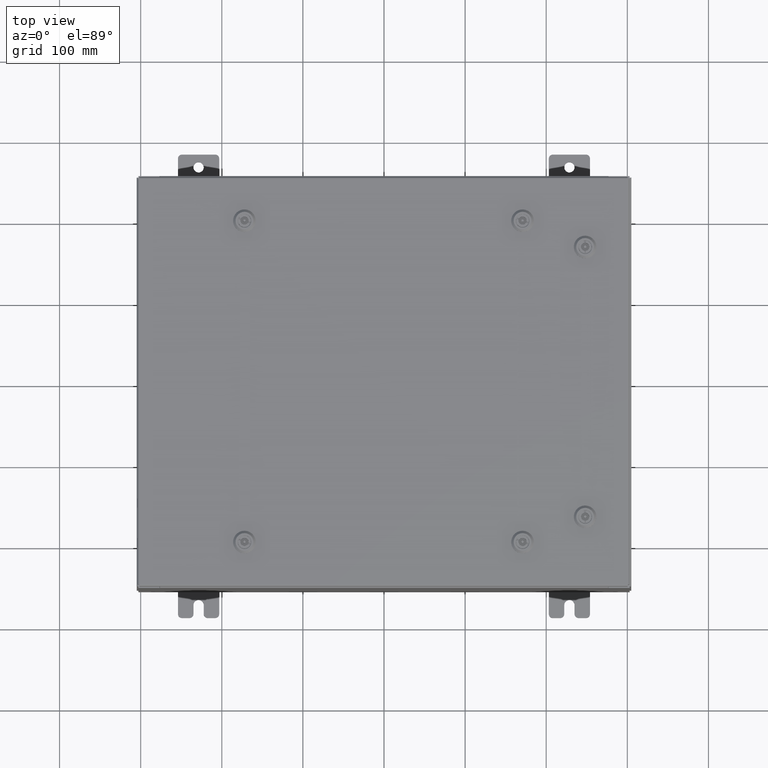
[diagram: clean part render]
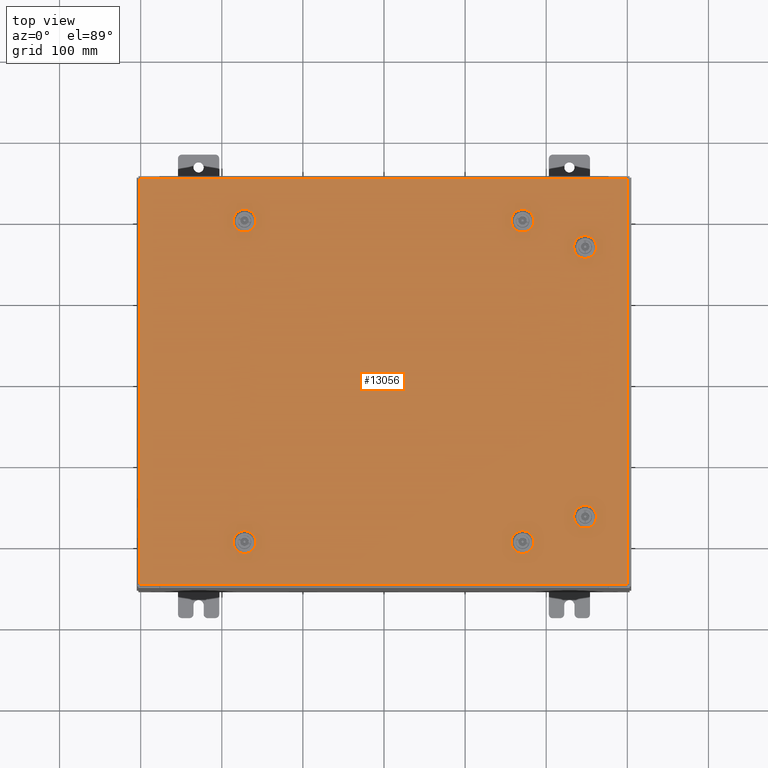
[diagram: same view with one face highlighted and labeled with its STEP entity id]
A machine part, top view. The second image highlights one B-rep face of the part: STEP entity #13056.
In plain terms, the highlighted planar face has unit normal (0, 0, -1).
Its self-contained STEP definition (entity closure, byte-faithful):
#666 = CARTESIAN_POINT ( 'NONE',  ( -6.949452375267869200, 7.392799999999994000, 0.0000000000000000000 ) ) ;
#678 = LINE ( 'NONE', #17160, #12120 ) ;
#840 = EDGE_CURVE ( 'NONE', #3509, #8757, #39560, .T. ) ;
#1135 = VERTEX_POINT ( 'NONE', #56614 ) ;
#1375 = CARTESIAN_POINT ( 'NONE',  ( -6.550547624732093500, 8.182799999999984300, 0.0000000000000000000 ) ) ;
#1407 = VECTOR ( 'NONE', #20702, 39.37007874015748100 ) ;
#1837 = VECTOR ( 'NONE', #5059, 39.37007874015748100 ) ;
#2102 = LINE ( 'NONE', #61636, #36542 ) ;
#2563 = CARTESIAN_POINT ( 'NONE',  ( -6.749999999999984900, 7.787799999999991800, 0.0000000000000000000 ) ) ;
#2796 = ORIENTED_EDGE ( 'NONE', *, *, #9666, .F. ) ;
#3298 = CARTESIAN_POINT ( 'NONE',  ( -6.550547624732093500, -8.182799999999986100, -2.548900087721007400E-013 ) ) ;
#3509 = VERTEX_POINT ( 'NONE', #666 ) ;
#3752 = DIRECTION ( 'NONE',  ( 0.0000000000000000000, 0.0000000000000000000, -1.000000000000000000 ) ) ;
#3800 = CARTESIAN_POINT ( 'NONE',  ( -6.749999999999984900, 7.787799999999991800, 0.0000000000000000000 ) ) ;
#4153 = AXIS2_PLACEMENT_3D ( 'NONE', #13929, #48234, #18863 ) ;
#4444 = VECTOR ( 'NONE', #63231, 39.37007874015748100 ) ;
#4455 = EDGE_CURVE ( 'NONE', #54157, #55228, #47881, .T. ) ;
#4512 = CARTESIAN_POINT ( 'NONE',  ( 6.550547624732091700, -8.182799999999984300, -2.091477791901900700E-013 ) ) ;
#4857 = FACE_BOUND ( 'NONE', #21498, .T. ) ;
#5059 = DIRECTION ( 'NONE',  ( 5.478697338139235000E-015, 1.000000000000000000, 6.982962677686325100E-015 ) ) ;
#5490 = CIRCLE ( 'NONE', #45632, 0.4424999999999972800 ) ;
#6006 = CARTESIAN_POINT ( 'NONE',  ( 6.949452375267864700, 8.182799999999989600, 0.0000000000000000000 ) ) ;
#6050 = DIRECTION ( 'NONE',  ( 6.982962677686266700E-015, -0.0000000000000000000, 1.000000000000000000 ) ) ;
#6152 = DIRECTION ( 'NONE',  ( -6.982962677686266700E-015, -6.982962677686266700E-015, 1.000000000000000000 ) ) ;
#6164 = LINE ( 'NONE', #50477, #32205 ) ;
#6385 = FACE_BOUND ( 'NONE', #30096, .T. ) ;
#6958 = AXIS2_PLACEMENT_3D ( 'NONE', #35378, #6050, #40332 ) ;
#7412 = CARTESIAN_POINT ( 'NONE',  ( 9.787800000000007800, 6.562500000000012400, 0.0000000000000000000 ) ) ;
#7467 = DIRECTION ( 'NONE',  ( 1.000000000000000000, 0.0000000000000000000, 0.0000000000000000000 ) ) ;
#7589 = VERTEX_POINT ( 'NONE', #57149 ) ;
#7818 = CARTESIAN_POINT ( 'NONE',  ( 10.18280000000000200, 6.761952375267898500, 0.0000000000000000000 ) ) ;
#8051 = EDGE_LOOP ( 'NONE', ( #12203, #14622, #37415, #2796 ) ) ;
#8346 = CIRCLE ( 'NONE', #60688, 0.4424999999999983400 ) ;
#8719 = CARTESIAN_POINT ( 'NONE',  ( 9.392800000000015400, -6.761952375267902900, -2.443558770110843000E-013 ) ) ;
#8720 = DIRECTION ( 'NONE',  ( 1.000000000000000000, 0.0000000000000000000, 0.0000000000000000000 ) ) ;
#8757 = VERTEX_POINT ( 'NONE', #33210 ) ;
#8778 = CIRCLE ( 'NONE', #15373, 0.4424999999999983400 ) ;
#8992 = CIRCLE ( 'NONE', #6958, 0.4424999999999983400 ) ;
#9336 = EDGE_CURVE ( 'NONE', #12774, #3509, #17690, .T. ) ;
#9356 = CARTESIAN_POINT ( 'NONE',  ( -6.749999999999984900, -7.787799999999993600, -2.521317385144147400E-013 ) ) ;
#9546 = VERTEX_POINT ( 'NONE', #63606 ) ;
#9666 = EDGE_CURVE ( 'NONE', #12380, #61228, #21484, .T. ) ;
#9783 = ORIENTED_EDGE ( 'NONE', *, *, #19269, .T. ) ;
#10701 = VERTEX_POINT ( 'NONE', #63540 ) ;
#10706 = EDGE_LOOP ( 'NONE', ( #9783, #24148, #58752, #50929 ) ) ;
#11382 = EDGE_CURVE ( 'NONE', #40223, #12774, #52070, .T. ) ;
#11543 = VECTOR ( 'NONE', #22962, 39.37007874015748100 ) ;
#11923 = CIRCLE ( 'NONE', #4153, 0.4424999999999972800 ) ;
#11925 = VECTOR ( 'NONE', #17502, 39.37007874015748100 ) ;
#12120 = VECTOR ( 'NONE', #51702, 39.37007874015748100 ) ;
#12145 = VERTEX_POINT ( 'NONE', #40261 ) ;
#12203 = ORIENTED_EDGE ( 'NONE', *, *, #49900, .F. ) ;
#12301 = DIRECTION ( 'NONE',  ( 1.000000000000000000, 0.0000000000000000000, 0.0000000000000000000 ) ) ;
#12380 = VERTEX_POINT ( 'NONE', #8719 ) ;
#12400 = LINE ( 'NONE', #55654, #36956 ) ;
#12499 = DIRECTION ( 'NONE',  ( -5.478697338139235000E-015, 1.000000000000000000, -0.0000000000000000000 ) ) ;
#12774 = VERTEX_POINT ( 'NONE', #26462 ) ;
#12821 = LINE ( 'NONE', #50125, #1407 ) ;
#12923 = EDGE_CURVE ( 'NONE', #43811, #57694, #24002, .T. ) ;
#13056 = ADVANCED_FACE ( 'NONE', ( #58526, #32424, #30919, #6385, #17877, #4857, #55433 ), #33058, .F. ) ;
#13423 = VERTEX_POINT ( 'NONE', #40349 ) ;
#13596 = DIRECTION ( 'NONE',  ( -0.0000000000000000000, -6.982962677686266700E-015, 1.000000000000000000 ) ) ;
#13929 = CARTESIAN_POINT ( 'NONE',  ( 6.749999999999983100, 7.787799999999992700, -4.713499807438223100E-014 ) ) ;
#14261 = DIRECTION ( 'NONE',  ( 0.0000000000000000000, 1.000000000000000000, 6.982962677686287200E-015 ) ) ;
#14488 = VECTOR ( 'NONE', #37598, 39.37007874015748100 ) ;
#14521 = AXIS2_PLACEMENT_3D ( 'NONE', #50031, #20613, #54920 ) ;
#14622 = ORIENTED_EDGE ( 'NONE', *, *, #53151, .F. ) ;
#15314 = DIRECTION ( 'NONE',  ( -0.0000000000000000000, -6.982962677686266700E-015, 1.000000000000000000 ) ) ;
#15373 = AXIS2_PLACEMENT_3D ( 'NONE', #18345, #52621, #23235 ) ;
#16160 = VERTEX_POINT ( 'NONE', #43749 ) ;
#16381 = VERTEX_POINT ( 'NONE', #41567 ) ;
#16442 = ORIENTED_EDGE ( 'NONE', *, *, #27292, .F. ) ;
#16478 = CIRCLE ( 'NONE', #56028, 0.4424999999999972800 ) ;
#16719 = CARTESIAN_POINT ( 'NONE',  ( -6.550547624732093500, 8.182799999999984300, 0.0000000000000000000 ) ) ;
#16722 = EDGE_CURVE ( 'NONE', #8757, #50389, #5490, .T. ) ;
#17160 = CARTESIAN_POINT ( 'NONE',  ( 6.550547624732099700, -7.392799999999996700, -2.036312386748179800E-013 ) ) ;
#17228 = ORIENTED_EDGE ( 'NONE', *, *, #9336, .F. ) ;
#17337 = CARTESIAN_POINT ( 'NONE',  ( 10.18280000000000200, 6.761952375267898500, 0.0000000000000000000 ) ) ;
#17398 = ORIENTED_EDGE ( 'NONE', *, *, #58100, .F. ) ;
#17502 = DIRECTION ( 'NONE',  ( -8.218046007208762600E-015, -1.000000000000000000, 0.0000000000000000000 ) ) ;
#17559 = EDGE_CURVE ( 'NONE', #47917, #40402, #24584, .T. ) ;
#17677 = CARTESIAN_POINT ( 'NONE',  ( 7.192499999999982100, -7.787799999999992700, -2.019067794551563600E-013 ) ) ;
#17690 = CIRCLE ( 'NONE', #36413, 0.4424999999999983400 ) ;
#17877 = FACE_BOUND ( 'NONE', #61613, .T. ) ;
#18245 = CARTESIAN_POINT ( 'NONE',  ( -6.949452375267865600, -8.182799999999991400, 0.0000000000000000000 ) ) ;
#18345 = CARTESIAN_POINT ( 'NONE',  ( 6.749999999999983100, -7.787799999999992700, -2.049967404400325100E-013 ) ) ;
#18466 = CIRCLE ( 'NONE', #46212, 0.4424999999999972800 ) ;
#18863 = DIRECTION ( 'NONE',  ( -1.000000000000000000, 0.0000000000000000000, 6.982962677686269100E-015 ) ) ;
#18975 = LINE ( 'NONE', #4512, #4444 ) ;
#19269 = EDGE_CURVE ( 'NONE', #7589, #19517, #27522, .T. ) ;
#19517 = VERTEX_POINT ( 'NONE', #23660 ) ;
#20613 = DIRECTION ( 'NONE',  ( -0.0000000000000000000, -6.982962677686266700E-015, 1.000000000000000000 ) ) ;
#20702 = DIRECTION ( 'NONE',  ( -1.000000000000000000, 2.739348669069610000E-015, 7.785697190086040200E-029 ) ) ;
#20820 = ORIENTED_EDGE ( 'NONE', *, *, #16722, .F. ) ;
#20840 = CARTESIAN_POINT ( 'NONE',  ( 10.18280000000000600, -6.761952375267898500, -2.443558770110843000E-013 ) ) ;
#21484 = CIRCLE ( 'NONE', #29383, 0.4424999999999972800 ) ;
#21498 = EDGE_LOOP ( 'NONE', ( #38848, #17228, #50249, #23655, #20820 ) ) ;
#21588 = EDGE_CURVE ( 'NONE', #13423, #47917, #22779, .T. ) ;
#21639 = DIRECTION ( 'NONE',  ( 0.0000000000000000000, 0.0000000000000000000, 1.000000000000000000 ) ) ;
#21865 = LINE ( 'NONE', #41951, #11925 ) ;
#22779 = CIRCLE ( 'NONE', #14521, 0.4424999999999983400 ) ;
#22962 = DIRECTION ( 'NONE',  ( 1.000000000000000000, 1.369674334534793800E-014, 7.785697190085976300E-029 ) ) ;
#23235 = DIRECTION ( 'NONE',  ( 1.000000000000000000, 0.0000000000000000000, 6.982962677686270700E-015 ) ) ;
#23431 = VECTOR ( 'NONE', #24995, 39.37007874015748100 ) ;
#23594 = CARTESIAN_POINT ( 'NONE',  ( -6.749999999999984900, 7.787799999999991800, 0.0000000000000000000 ) ) ;
#23655 = ORIENTED_EDGE ( 'NONE', *, *, #38532, .F. ) ;
#23660 = CARTESIAN_POINT ( 'NONE',  ( 11.84980000000000000, -9.849800000000000100, -2.048885995248197400E-016 ) ) ;
#23685 = DIRECTION ( 'NONE',  ( -6.982962677686266700E-015, -6.982962677686266700E-015, 1.000000000000000000 ) ) ;
#24002 = LINE ( 'NONE', #7818, #48552 ) ;
#24022 = CARTESIAN_POINT ( 'NONE',  ( 11.84980000000000200, 9.849800000000000100, -2.048885995248197400E-016 ) ) ;
#24110 = EDGE_LOOP ( 'NONE', ( #40314, #51485, #39656, #17398, #31504 ) ) ;
#24148 = ORIENTED_EDGE ( 'NONE', *, *, #27789, .T. ) ;
#24421 = CARTESIAN_POINT ( 'NONE',  ( -6.749999999999984900, -7.787799999999993600, -2.521317385144147400E-013 ) ) ;
#24463 = ORIENTED_EDGE ( 'NONE', *, *, #17559, .F. ) ;
#24584 = LINE ( 'NONE', #3298, #11543 ) ;
#24940 = ORIENTED_EDGE ( 'NONE', *, *, #31306, .F. ) ;
#24995 = DIRECTION ( 'NONE',  ( 1.000000000000000000, -2.739348669069625000E-015, -6.982962677686286400E-015 ) ) ;
#25120 = DIRECTION ( 'NONE',  ( 6.982962677686266700E-015, -0.0000000000000000000, 1.000000000000000000 ) ) ;
#25434 = CARTESIAN_POINT ( 'NONE',  ( 9.392800000000015400, 6.761952375267902900, 0.0000000000000000000 ) ) ;
#25988 = VECTOR ( 'NONE', #60055, 39.37007874015748100 ) ;
#26223 = CARTESIAN_POINT ( 'NONE',  ( -6.307499999999987700, -7.787799999999993600, -2.521317385144147400E-013 ) ) ;
#26462 = CARTESIAN_POINT ( 'NONE',  ( -6.949452375267865600, 8.182799999999989600, 0.0000000000000000000 ) ) ;
#26517 = VECTOR ( 'NONE', #62328, 39.37007874015748100 ) ;
#26521 = LINE ( 'NONE', #59310, #23431 ) ;
#26647 = ORIENTED_EDGE ( 'NONE', *, *, #31925, .F. ) ;
#27292 = EDGE_CURVE ( 'NONE', #16381, #43811, #35848, .T. ) ;
#27313 = DIRECTION ( 'NONE',  ( 1.095739467627835000E-014, -1.000000000000000000, -6.982962677686248600E-015 ) ) ;
#27522 = LINE ( 'NONE', #57110, #14488 ) ;
#27670 = AXIS2_PLACEMENT_3D ( 'NONE', #9356, #43658, #14261 ) ;
#27789 = EDGE_CURVE ( 'NONE', #19517, #41201, #49629, .T. ) ;
#27902 = VERTEX_POINT ( 'NONE', #35089 ) ;
#28205 = CARTESIAN_POINT ( 'NONE',  ( 6.550547624732099700, -7.392799999999996700, -2.036312386748179800E-013 ) ) ;
#28218 = VERTEX_POINT ( 'NONE', #26223 ) ;
#28341 = AXIS2_PLACEMENT_3D ( 'NONE', #23594, #57895, #28513 ) ;
#28513 = DIRECTION ( 'NONE',  ( 1.000000000000000000, 0.0000000000000000000, 0.0000000000000000000 ) ) ;
#28639 = EDGE_CURVE ( 'NONE', #12145, #13423, #12821, .T. ) ;
#28779 = CIRCLE ( 'NONE', #27670, 0.4424999999999972800 ) ;
#29356 = DIRECTION ( 'NONE',  ( 0.0000000000000000000, 1.000000000000000000, 6.982962677686287200E-015 ) ) ;
#29383 = AXIS2_PLACEMENT_3D ( 'NONE', #44716, #15314, #49649 ) ;
#29892 = CARTESIAN_POINT ( 'NONE',  ( 10.18280000000000600, -6.761952375267898500, -2.443558770110843000E-013 ) ) ;
#29955 = AXIS2_PLACEMENT_3D ( 'NONE', #51060, #21639, #55941 ) ;
#30096 = EDGE_LOOP ( 'NONE', ( #24463, #38933, #48128, #24940, #26647 ) ) ;
#30919 = FACE_BOUND ( 'NONE', #24110, .T. ) ;
#31079 = EDGE_CURVE ( 'NONE', #62460, #16381, #21865, .T. ) ;
#31306 = EDGE_CURVE ( 'NONE', #28218, #12145, #28779, .T. ) ;
#31504 = ORIENTED_EDGE ( 'NONE', *, *, #4455, .F. ) ;
#31787 = VERTEX_POINT ( 'NONE', #17677 ) ;
#31925 = EDGE_CURVE ( 'NONE', #40402, #28218, #16478, .T. ) ;
#32205 = VECTOR ( 'NONE', #55342, 39.37007874015748100 ) ;
#32326 = CARTESIAN_POINT ( 'NONE',  ( 6.949452375267867400, 7.392799999999995800, -4.852776656685374400E-014 ) ) ;
#32424 = FACE_BOUND ( 'NONE', #35257, .T. ) ;
#33058 = PLANE ( 'NONE',  #34796 ) ;
#33210 = CARTESIAN_POINT ( 'NONE',  ( -6.550547624732099700, 7.392799999999995800, 0.0000000000000000000 ) ) ;
#33447 = ORIENTED_EDGE ( 'NONE', *, *, #59016, .F. ) ;
#34796 = AXIS2_PLACEMENT_3D ( 'NONE', #62463, #3752, #38005 ) ;
#35089 = CARTESIAN_POINT ( 'NONE',  ( 6.949452375267867400, -7.392799999999995800, 0.0000000000000000000 ) ) ;
#35257 = EDGE_LOOP ( 'NONE', ( #59557, #16442, #61927, #42029 ) ) ;
#35277 = CIRCLE ( 'NONE', #52017, 0.4424999999999983400 ) ;
#35378 = CARTESIAN_POINT ( 'NONE',  ( 6.749999999999983100, 7.787799999999992700, -4.713499807438223100E-014 ) ) ;
#35489 = CARTESIAN_POINT ( 'NONE',  ( 6.749999999999983100, -7.787799999999992700, -2.049967404400325100E-013 ) ) ;
#35848 = CIRCLE ( 'NONE', #29955, 0.4424999999999972800 ) ;
#36193 = CARTESIAN_POINT ( 'NONE',  ( -6.550547624732099700, 7.392799999999995800, 0.0000000000000000000 ) ) ;
#36413 = AXIS2_PLACEMENT_3D ( 'NONE', #2563, #36799, #7467 ) ;
#36542 = VECTOR ( 'NONE', #27313, 39.37007874015748100 ) ;
#36799 = DIRECTION ( 'NONE',  ( 0.0000000000000000000, 0.0000000000000000000, 1.000000000000000000 ) ) ;
#36839 = VERTEX_POINT ( 'NONE', #62130 ) ;
#36956 = VECTOR ( 'NONE', #60625, 39.37007874015748100 ) ;
#37415 = ORIENTED_EDGE ( 'NONE', *, *, #63030, .F. ) ;
#37598 = DIRECTION ( 'NONE',  ( 1.000000000000000000, -0.0000000000000000000, -0.0000000000000000000 ) ) ;
#37988 = CARTESIAN_POINT ( 'NONE',  ( 6.949452375267864700, -8.182799999999989600, -2.063622422052470700E-013 ) ) ;
#38005 = DIRECTION ( 'NONE',  ( -1.000000000000000000, 0.0000000000000000000, -0.0000000000000000000 ) ) ;
#38056 = DIRECTION ( 'NONE',  ( 0.0000000000000000000, 0.0000000000000000000, 1.000000000000000000 ) ) ;
#38108 = VECTOR ( 'NONE', #39607, 39.37007874015748100 ) ;
#38398 = AXIS2_PLACEMENT_3D ( 'NONE', #42995, #13596, #47911 ) ;
#38532 = EDGE_CURVE ( 'NONE', #50389, #40223, #56696, .T. ) ;
#38642 = ORIENTED_EDGE ( 'NONE', *, *, #40973, .F. ) ;
#38848 = ORIENTED_EDGE ( 'NONE', *, *, #840, .F. ) ;
#38933 = ORIENTED_EDGE ( 'NONE', *, *, #21588, .F. ) ;
#39484 = ORIENTED_EDGE ( 'NONE', *, *, #50846, .F. ) ;
#39560 = LINE ( 'NONE', #36193, #26517 ) ;
#39607 = DIRECTION ( 'NONE',  ( 0.0000000000000000000, 1.000000000000000000, 0.0000000000000000000 ) ) ;
#39656 = ORIENTED_EDGE ( 'NONE', *, *, #55265, .F. ) ;
#39680 = ORIENTED_EDGE ( 'NONE', *, *, #47536, .F. ) ;
#39927 = CARTESIAN_POINT ( 'NONE',  ( 9.392800000000011800, -6.363047624732129900, 0.0000000000000000000 ) ) ;
#40223 = VERTEX_POINT ( 'NONE', #16719 ) ;
#40261 = CARTESIAN_POINT ( 'NONE',  ( -6.550547624732099700, -7.392799999999997600, -2.493734682567286900E-013 ) ) ;
#40314 = ORIENTED_EDGE ( 'NONE', *, *, #47854, .F. ) ;
#40332 = DIRECTION ( 'NONE',  ( -1.000000000000000000, 0.0000000000000000000, 6.982962677686252500E-015 ) ) ;
#40349 = CARTESIAN_POINT ( 'NONE',  ( -6.949452375267869200, -7.392799999999996700, -2.493734682567286900E-013 ) ) ;
#40402 = VERTEX_POINT ( 'NONE', #42224 ) ;
#40438 = DIRECTION ( 'NONE',  ( 1.000000000000000000, 0.0000000000000000000, 6.982962677686270700E-015 ) ) ;
#40458 = CARTESIAN_POINT ( 'NONE',  ( 10.18280000000000600, 6.363047624732129900, 0.0000000000000000000 ) ) ;
#40973 = EDGE_CURVE ( 'NONE', #48300, #9546, #12400, .T. ) ;
#41201 = VERTEX_POINT ( 'NONE', #24022 ) ;
#41567 = CARTESIAN_POINT ( 'NONE',  ( 9.392800000000011800, 6.363047624732129900, 0.0000000000000000000 ) ) ;
#41692 = DIRECTION ( 'NONE',  ( 0.0000000000000000000, 0.0000000000000000000, 1.000000000000000000 ) ) ;
#41868 = VERTEX_POINT ( 'NONE', #32326 ) ;
#41951 = CARTESIAN_POINT ( 'NONE',  ( 9.392800000000015400, 6.761952375267902900, 0.0000000000000000000 ) ) ;
#42029 = ORIENTED_EDGE ( 'NONE', *, *, #44597, .F. ) ;
#42224 = CARTESIAN_POINT ( 'NONE',  ( -6.550547624732093500, -8.182799999999986100, -2.548900087721007400E-013 ) ) ;
#42769 = DIRECTION ( 'NONE',  ( -1.000000000000000000, -0.0000000000000000000, -0.0000000000000000000 ) ) ;
#42995 = CARTESIAN_POINT ( 'NONE',  ( 9.787800000000007800, -6.562500000000012400, -2.429631085186127400E-013 ) ) ;
#43658 = DIRECTION ( 'NONE',  ( -0.0000000000000000000, -6.982962677686266700E-015, 1.000000000000000000 ) ) ;
#43749 = CARTESIAN_POINT ( 'NONE',  ( 7.192499999999982100, 7.787799999999992700, -5.022495905925838800E-014 ) ) ;
#43811 = VERTEX_POINT ( 'NONE', #40458 ) ;
#44597 = EDGE_CURVE ( 'NONE', #57694, #62460, #18466, .T. ) ;
#44716 = CARTESIAN_POINT ( 'NONE',  ( 9.787800000000007800, -6.562500000000012400, -2.429631085186127400E-013 ) ) ;
#45632 = AXIS2_PLACEMENT_3D ( 'NONE', #3800, #38056, #8720 ) ;
#45752 = AXIS2_PLACEMENT_3D ( 'NONE', #53064, #23685, #58002 ) ;
#46212 = AXIS2_PLACEMENT_3D ( 'NONE', #7412, #41692, #12301 ) ;
#46536 = LINE ( 'NONE', #62273, #48048 ) ;
#47536 = EDGE_CURVE ( 'NONE', #41868, #16160, #8346, .T. ) ;
#47854 = EDGE_CURVE ( 'NONE', #27902, #54157, #678, .T. ) ;
#47881 = CIRCLE ( 'NONE', #45752, 0.4424999999999972800 ) ;
#47911 = DIRECTION ( 'NONE',  ( 0.0000000000000000000, 1.000000000000000000, 6.982962677686270700E-015 ) ) ;
#47917 = VERTEX_POINT ( 'NONE', #18245 ) ;
#48048 = VECTOR ( 'NONE', #42769, 39.37007874015748100 ) ;
#48128 = ORIENTED_EDGE ( 'NONE', *, *, #28639, .F. ) ;
#48234 = DIRECTION ( 'NONE',  ( 6.982962677686266700E-015, -0.0000000000000000000, 1.000000000000000000 ) ) ;
#48300 = VERTEX_POINT ( 'NONE', #6006 ) ;
#48552 = VECTOR ( 'NONE', #12499, 39.37007874015748100 ) ;
#49629 = LINE ( 'NONE', #59124, #38108 ) ;
#49649 = DIRECTION ( 'NONE',  ( 0.0000000000000000000, 1.000000000000000000, 6.982962677686287200E-015 ) ) ;
#49900 = EDGE_CURVE ( 'NONE', #50283, #12380, #2102, .T. ) ;
#50000 = EDGE_CURVE ( 'NONE', #41201, #10701, #46536, .T. ) ;
#50021 = CARTESIAN_POINT ( 'NONE',  ( -6.307499999999987700, 7.787799999999991800, 0.0000000000000000000 ) ) ;
#50031 = CARTESIAN_POINT ( 'NONE',  ( -6.749999999999984900, -7.787799999999993600, -2.521317385144147400E-013 ) ) ;
#50103 = CARTESIAN_POINT ( 'NONE',  ( 6.550547624732091700, -8.182799999999984300, -2.091477791901901000E-013 ) ) ;
#50125 = CARTESIAN_POINT ( 'NONE',  ( -6.550547624732099700, -7.392799999999997600, -2.493734682567286900E-013 ) ) ;
#50249 = ORIENTED_EDGE ( 'NONE', *, *, #11382, .F. ) ;
#50283 = VERTEX_POINT ( 'NONE', #39927 ) ;
#50389 = VERTEX_POINT ( 'NONE', #50021 ) ;
#50477 = CARTESIAN_POINT ( 'NONE',  ( -11.84980000000000000, 9.849800000000001900, -1.297627796990525000E-015 ) ) ;
#50846 = EDGE_CURVE ( 'NONE', #1135, #41868, #26521, .T. ) ;
#50929 = ORIENTED_EDGE ( 'NONE', *, *, #55310, .T. ) ;
#51060 = CARTESIAN_POINT ( 'NONE',  ( 9.787800000000007800, 6.562500000000012400, 0.0000000000000000000 ) ) ;
#51485 = ORIENTED_EDGE ( 'NONE', *, *, #53129, .F. ) ;
#51702 = DIRECTION ( 'NONE',  ( -1.000000000000000000, -2.739348669069625000E-015, -6.982962677686265900E-015 ) ) ;
#52017 = AXIS2_PLACEMENT_3D ( 'NONE', #35489, #6152, #40438 ) ;
#52070 = LINE ( 'NONE', #1375, #25988 ) ;
#52621 = DIRECTION ( 'NONE',  ( -6.982962677686266700E-015, -6.982962677686266700E-015, 1.000000000000000000 ) ) ;
#53064 = CARTESIAN_POINT ( 'NONE',  ( 6.749999999999983100, -7.787799999999992700, -2.049967404400325100E-013 ) ) ;
#53129 = EDGE_CURVE ( 'NONE', #31787, #27902, #8778, .T. ) ;
#53151 = EDGE_CURVE ( 'NONE', #36839, #50283, #59385, .T. ) ;
#53913 = LINE ( 'NONE', #29892, #1837 ) ;
#54157 = VERTEX_POINT ( 'NONE', #28205 ) ;
#54483 = CARTESIAN_POINT ( 'NONE',  ( 6.749999999999983100, 7.787799999999992700, -4.713499807438223100E-014 ) ) ;
#54920 = DIRECTION ( 'NONE',  ( 0.0000000000000000000, 1.000000000000000000, 6.982962677686270700E-015 ) ) ;
#55228 = VERTEX_POINT ( 'NONE', #50103 ) ;
#55265 = EDGE_CURVE ( 'NONE', #58675, #31787, #35277, .T. ) ;
#55310 = EDGE_CURVE ( 'NONE', #10701, #7589, #6164, .T. ) ;
#55342 = DIRECTION ( 'NONE',  ( 0.0000000000000000000, -1.000000000000000000, 0.0000000000000000000 ) ) ;
#55433 = FACE_OUTER_BOUND ( 'NONE', #10706, .T. ) ;
#55654 = CARTESIAN_POINT ( 'NONE',  ( 6.550547624732091700, 8.182799999999984300, -4.574222958191066700E-014 ) ) ;
#55941 = DIRECTION ( 'NONE',  ( 1.000000000000000000, 0.0000000000000000000, 0.0000000000000000000 ) ) ;
#56028 = AXIS2_PLACEMENT_3D ( 'NONE', #24421, #58721, #29356 ) ;
#56614 = CARTESIAN_POINT ( 'NONE',  ( 6.550547624732099700, 7.392799999999996700, -4.574222958191072400E-014 ) ) ;
#56696 = CIRCLE ( 'NONE', #28341, 0.4424999999999972800 ) ;
#57110 = CARTESIAN_POINT ( 'NONE',  ( -11.84979999999999100, -9.849800000000001900, 8.366284480596805700E-016 ) ) ;
#57149 = CARTESIAN_POINT ( 'NONE',  ( -11.84979999999999300, -9.849800000000001900, 8.451654730398814300E-016 ) ) ;
#57694 = VERTEX_POINT ( 'NONE', #17337 ) ;
#57895 = DIRECTION ( 'NONE',  ( 0.0000000000000000000, 0.0000000000000000000, 1.000000000000000000 ) ) ;
#58002 = DIRECTION ( 'NONE',  ( 1.000000000000000000, 0.0000000000000000000, 6.982962677686287200E-015 ) ) ;
#58100 = EDGE_CURVE ( 'NONE', #55228, #58675, #18975, .T. ) ;
#58526 = FACE_BOUND ( 'NONE', #8051, .T. ) ;
#58675 = VERTEX_POINT ( 'NONE', #37988 ) ;
#58721 = DIRECTION ( 'NONE',  ( -0.0000000000000000000, -6.982962677686266700E-015, 1.000000000000000000 ) ) ;
#58752 = ORIENTED_EDGE ( 'NONE', *, *, #50000, .T. ) ;
#59016 = EDGE_CURVE ( 'NONE', #16160, #48300, #8992, .T. ) ;
#59124 = CARTESIAN_POINT ( 'NONE',  ( 11.84980000000000000, -9.849800000000000100, -2.048885995248197400E-016 ) ) ;
#59310 = CARTESIAN_POINT ( 'NONE',  ( 6.550547624732099700, 7.392799999999996700, -4.574222958191072400E-014 ) ) ;
#59385 = CIRCLE ( 'NONE', #38398, 0.4424999999999983400 ) ;
#59439 = DIRECTION ( 'NONE',  ( -1.000000000000000000, 0.0000000000000000000, 6.982962677686252500E-015 ) ) ;
#59557 = ORIENTED_EDGE ( 'NONE', *, *, #12923, .F. ) ;
#60055 = DIRECTION ( 'NONE',  ( -1.000000000000000000, 1.369674334534793800E-014, 0.0000000000000000000 ) ) ;
#60625 = DIRECTION ( 'NONE',  ( -1.000000000000000000, -1.369674334534793800E-014, 6.982962677686269100E-015 ) ) ;
#60671 = ORIENTED_EDGE ( 'NONE', *, *, #60704, .F. ) ;
#60688 = AXIS2_PLACEMENT_3D ( 'NONE', #54483, #25120, #59439 ) ;
#60704 = EDGE_CURVE ( 'NONE', #9546, #1135, #11923, .T. ) ;
#61228 = VERTEX_POINT ( 'NONE', #20840 ) ;
#61613 = EDGE_LOOP ( 'NONE', ( #38642, #33447, #39680, #39484, #60671 ) ) ;
#61636 = CARTESIAN_POINT ( 'NONE',  ( 9.392800000000017100, -6.761952375267902900, -2.443558770110843000E-013 ) ) ;
#61927 = ORIENTED_EDGE ( 'NONE', *, *, #31079, .F. ) ;
#62130 = CARTESIAN_POINT ( 'NONE',  ( 10.18280000000000700, -6.363047624732129900, -2.415703400261412200E-013 ) ) ;
#62273 = CARTESIAN_POINT ( 'NONE',  ( 11.84980000000000200, 9.849800000000000100, -2.048885995248197400E-016 ) ) ;
#62328 = DIRECTION ( 'NONE',  ( 1.000000000000000000, 2.739348669069610000E-015, -0.0000000000000000000 ) ) ;
#62460 = VERTEX_POINT ( 'NONE', #25434 ) ;
#62463 = CARTESIAN_POINT ( 'NONE',  ( 0.0000000000000000000, 0.0000000000000000000, 0.0000000000000000000 ) ) ;
#63030 = EDGE_CURVE ( 'NONE', #61228, #36839, #53913, .T. ) ;
#63231 = DIRECTION ( 'NONE',  ( 1.000000000000000000, -1.369674334534793800E-014, 6.982962677686171300E-015 ) ) ;
#63540 = CARTESIAN_POINT ( 'NONE',  ( -11.84980000000000000, 9.849800000000001900, -1.297627796990525000E-015 ) ) ;
#63606 = CARTESIAN_POINT ( 'NONE',  ( 6.550547624732091700, 8.182799999999984300, -4.574222958191066700E-014 ) ) ;